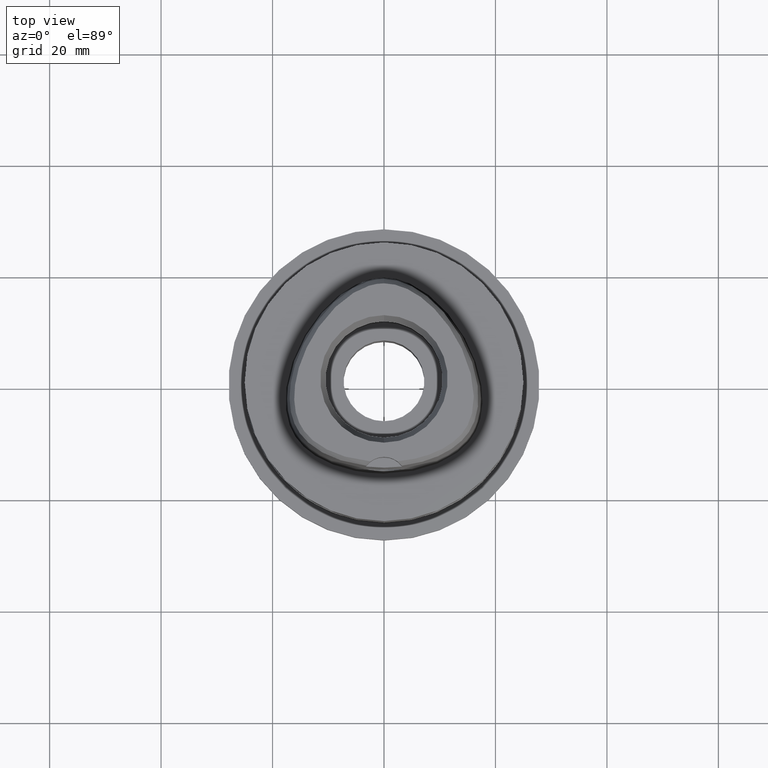
[diagram: clean part render]
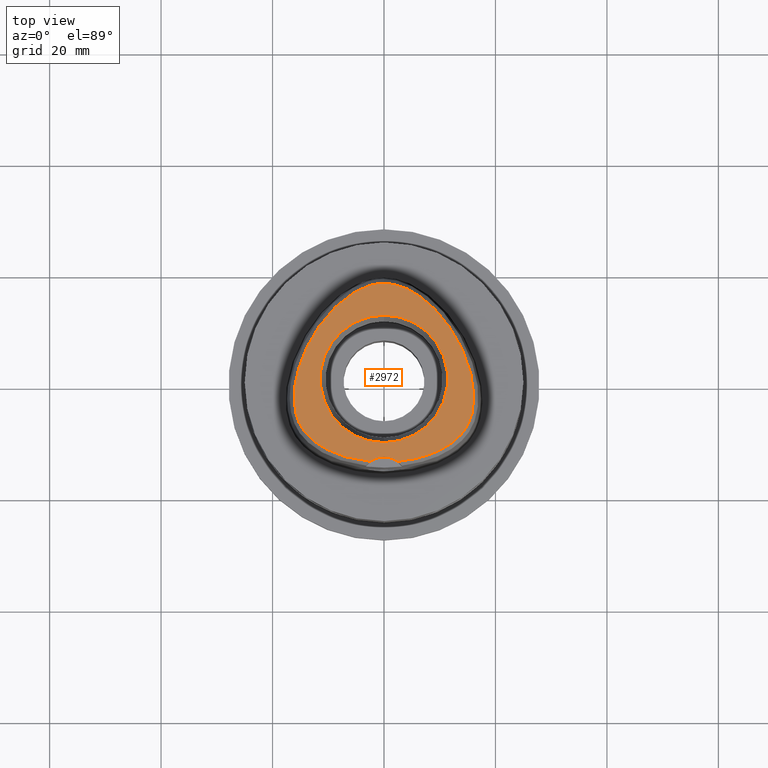
[diagram: same view with one face highlighted and labeled with its STEP entity id]
A machine part, top view. The second image highlights one B-rep face of the part: STEP entity #2972.
In plain terms, the highlighted planar face has unit normal (0, 0, 1).
Its self-contained STEP definition (entity closure, byte-faithful):
#17=CARTESIAN_POINT('',(0.E0,-1.8E1,3.E1));
#18=DIRECTION('',(0.E0,0.E0,1.E0));
#19=DIRECTION('',(6.016359810411E-1,7.987703964950E-1,0.E0));
#20=AXIS2_PLACEMENT_3D('',#17,#18,#19);
#26=CARTESIAN_POINT('',(-2.406542353495E0,-1.480491723099E1,3.E1));
#27=CARTESIAN_POINT('',(-3.109161179933E0,-1.474129718990E1,3.E1));
#28=CARTESIAN_POINT('',(-4.437358336849E0,-1.456504602185E1,3.E1));
#29=CARTESIAN_POINT('',(-6.238534705192E0,-1.417925905909E1,3.E1));
#30=CARTESIAN_POINT('',(-7.741710592277E0,-1.373579445654E1,3.E1));
#31=CARTESIAN_POINT('',(-9.069530232156E0,-1.323823702531E1,3.E1));
#32=CARTESIAN_POINT('',(-1.026829450351E1,-1.268199885637E1,3.E1));
#33=CARTESIAN_POINT('',(-1.135847473899E1,-1.206492026595E1,3.E1));
#34=CARTESIAN_POINT('',(-1.234489694393E1,-1.138381521960E1,3.E1));
#35=CARTESIAN_POINT('',(-1.318415154252E1,-1.067499953703E1,3.E1));
#36=CARTESIAN_POINT('',(-1.387487115613E1,-9.963714364918E0,3.E1));
#37=CARTESIAN_POINT('',(-1.444839980027E1,-9.238523917348E0,3.E1));
#38=CARTESIAN_POINT('',(-1.491175185993E1,-8.507975586286E0,3.E1));
#39=CARTESIAN_POINT('',(-1.529837219293E1,-7.728770952961E0,3.E1));
#40=CARTESIAN_POINT('',(-1.562623557968E1,-6.851471101386E0,3.E1));
#41=CARTESIAN_POINT('',(-1.588245783255E1,-5.874445677346E0,3.E1));
#42=CARTESIAN_POINT('',(-1.605870124537E1,-4.768913065026E0,3.E1));
#43=CARTESIAN_POINT('',(-1.613401620741E1,-3.560132425596E0,3.E1));
#44=CARTESIAN_POINT('',(-1.610264894494E1,-2.300917859104E0,3.E1));
#45=CARTESIAN_POINT('',(-1.596330142572E1,-9.691390692021E-1,3.E1));
#46=CARTESIAN_POINT('',(-1.570626344501E1,4.502061145955E-1,3.E1));
#47=CARTESIAN_POINT('',(-1.530187086851E1,2.023643866960E0,3.E1));
#48=CARTESIAN_POINT('',(-1.469398224817E1,3.809495974039E0,3.E1));
#49=CARTESIAN_POINT('',(-1.387437075310E1,5.701232250586E0,3.E1));
#50=CARTESIAN_POINT('',(-1.289000993558E1,7.554668622119E0,3.E1));
#51=CARTESIAN_POINT('',(-1.176274462392E1,9.327940698699E0,3.E1));
#52=CARTESIAN_POINT('',(-1.052497352959E1,1.096933844261E1,3.E1));
#53=CARTESIAN_POINT('',(-9.290885716814E0,1.235743058862E1,3.E1));
#54=CARTESIAN_POINT('',(-8.145190185510E0,1.346514176894E1,3.E1));
#55=CARTESIAN_POINT('',(-7.051483084153E0,1.438007482805E1,3.E1));
#56=CARTESIAN_POINT('',(-5.965503088340E0,1.515766033338E1,3.E1));
#57=CARTESIAN_POINT('',(-4.882193751627E0,1.580811963201E1,3.E1));
#58=CARTESIAN_POINT('',(-3.806226190347E0,1.633184881187E1,3.E1));
#59=CARTESIAN_POINT('',(-2.767552081238E0,1.671974647145E1,3.E1));
#60=CARTESIAN_POINT('',(-1.797105354015E0,1.697603683424E1,3.E1));
#61=CARTESIAN_POINT('',(-8.807517091895E-1,1.712180558568E1,3.E1));
#62=CARTESIAN_POINT('',(-2.894082794308E-1,1.715328888648E1,3.E1));
#63=CARTESIAN_POINT('',(-6.301949014356E-11,1.715328888648E1,3.E1));
#68=CARTESIAN_POINT('',(-6.301949014356E-11,1.715328888648E1,3.E1));
#69=CARTESIAN_POINT('',(2.889391681541E-1,1.715328888649E1,3.E1));
#70=CARTESIAN_POINT('',(8.796858845032E-1,1.712190815315E1,3.E1));
#71=CARTESIAN_POINT('',(1.796230900410E0,1.697626372075E1,3.E1));
#72=CARTESIAN_POINT('',(2.767773144627E0,1.671966247638E1,3.E1));
#73=CARTESIAN_POINT('',(3.803564291969E0,1.633280741820E1,3.E1));
#74=CARTESIAN_POINT('',(4.872971618429E0,1.581283711859E1,3.E1));
#75=CARTESIAN_POINT('',(5.952992982392E0,1.516612302977E1,3.E1));
#76=CARTESIAN_POINT('',(7.049319389249E0,1.438190795032E1,3.E1));
#77=CARTESIAN_POINT('',(8.137584033286E0,1.347168430105E1,3.E1));
#78=CARTESIAN_POINT('',(9.281427110069E0,1.236739400427E1,3.E1));
#79=CARTESIAN_POINT('',(1.051758667600E1,1.097828250121E1,3.E1));
#80=CARTESIAN_POINT('',(1.175206760808E1,9.343043981745E0,3.E1));
#81=CARTESIAN_POINT('',(1.287955641242E1,7.572701322593E0,3.E1));
#82=CARTESIAN_POINT('',(1.386724203900E1,5.716315526606E0,3.E1));
#83=CARTESIAN_POINT('',(1.469071737268E1,3.818697148236E0,3.E1));
#84=CARTESIAN_POINT('',(1.530253760380E1,2.022030475082E0,3.E1));
#85=CARTESIAN_POINT('',(1.570698439429E1,4.470499706763E-1,3.E1));
#86=CARTESIAN_POINT('',(1.596402284534E1,-9.742301580989E-1,3.E1));
#87=CARTESIAN_POINT('',(1.610291457074E1,-2.304270430734E0,3.E1));
#88=CARTESIAN_POINT('',(1.613392218872E1,-3.567382315263E0,3.E1));
#89=CARTESIAN_POINT('',(1.605818843614E1,-4.771701475705E0,3.E1));
#90=CARTESIAN_POINT('',(1.588267384290E1,-5.873758725011E0,3.E1));
#91=CARTESIAN_POINT('',(1.562509108237E1,-6.855244363065E0,3.E1));
#92=CARTESIAN_POINT('',(1.529799612413E1,-7.729414022952E0,3.E1));
#93=CARTESIAN_POINT('',(1.491081039260E1,-8.509944932358E0,3.E1));
#94=CARTESIAN_POINT('',(1.444558161705E1,-9.242364354441E0,3.E1));
#95=CARTESIAN_POINT('',(1.387428318931E1,-9.964355342065E0,3.E1));
#96=CARTESIAN_POINT('',(1.318147391573E1,-1.067750472887E1,3.E1));
#97=CARTESIAN_POINT('',(1.234479841375E1,-1.138373449953E1,3.E1));
#98=CARTESIAN_POINT('',(1.136031082193E1,-1.206367890903E1,3.E1));
#99=CARTESIAN_POINT('',(1.027304202054E1,-1.267954965893E1,3.E1));
#100=CARTESIAN_POINT('',(9.073160722336E0,-1.323673411219E1,3.E1));
#101=CARTESIAN_POINT('',(7.745615167476E0,-1.373458531509E1,3.E1));
#102=CARTESIAN_POINT('',(6.236841119683E0,-1.417976747111E1,3.E1));
#103=CARTESIAN_POINT('',(4.436852600013E0,-1.456507929174E1,3.E1));
#104=CARTESIAN_POINT('',(3.108810171301E0,-1.474132464137E1,3.E1));
#105=CARTESIAN_POINT('',(2.406543924165E0,-1.480491841402E1,3.E1));
#110=CARTESIAN_POINT('',(0.E0,1.570609519906E-14,3.E1));
#111=DIRECTION('',(0.E0,0.E0,1.E0));
#112=DIRECTION('',(0.E0,1.E0,0.E0));
#113=AXIS2_PLACEMENT_3D('',#110,#111,#112);
#118=CARTESIAN_POINT('',(0.E0,1.570609519906E-14,3.E1));
#119=DIRECTION('',(0.E0,0.E0,1.E0));
#120=DIRECTION('',(0.E0,-1.E0,0.E0));
#121=AXIS2_PLACEMENT_3D('',#118,#119,#120);
#2632=CARTESIAN_POINT('',(2.406543924164E0,-1.480491841402E1,3.E1));
#2633=CARTESIAN_POINT('',(-2.406542353497E0,-1.480491723099E1,3.E1));
#2634=VERTEX_POINT('',#2632);
#2635=VERTEX_POINT('',#2633);
#2636=VERTEX_POINT('',#63);
#2637=CARTESIAN_POINT('',(0.E0,1.143782217350E1,3.E1));
#2638=CARTESIAN_POINT('',(0.E0,-1.143782217350E1,3.E1));
#2639=VERTEX_POINT('',#2637);
#2640=VERTEX_POINT('',#2638);
#2953=CARTESIAN_POINT('',(0.E0,0.E0,3.E1));
#2954=DIRECTION('',(0.E0,0.E0,1.E0));
#2955=DIRECTION('',(0.E0,1.E0,0.E0));
#2956=AXIS2_PLACEMENT_3D('',#2953,#2954,#2955);
#2957=PLANE('',#2956);
#2959=ORIENTED_EDGE('',*,*,#2958,.T.);
#2961=ORIENTED_EDGE('',*,*,#2960,.T.);
#2963=ORIENTED_EDGE('',*,*,#2962,.T.);
#2964=EDGE_LOOP('',(#2959,#2961,#2963));
#2965=FACE_OUTER_BOUND('',#2964,.F.);
#2967=ORIENTED_EDGE('',*,*,#2966,.T.);
#2969=ORIENTED_EDGE('',*,*,#2968,.T.);
#2970=EDGE_LOOP('',(#2967,#2969));
#2971=FACE_BOUND('',#2970,.F.);
#21=CIRCLE('',#20,4.E0);
#64=B_SPLINE_CURVE_WITH_KNOTS('',3,(#26,#27,#28,#29,#30,#31,#32,#33,#34,#35,#36,
#37,#38,#39,#40,#41,#42,#43,#44,#45,#46,#47,#48,#49,#50,#51,#52,#53,#54,#55,#56,
#57,#58,#59,#60,#61,#62,#63),.UNSPECIFIED.,.F.,.F.,(4,1,1,1,1,1,1,1,1,1,1,1,1,1,
1,1,1,1,1,1,1,1,1,1,1,1,1,1,1,1,1,1,1,1,1,4),(0.E0,2.857142857143E-2,
5.714285714286E-2,8.571428571429E-2,1.142857142857E-1,1.428571428571E-1,
1.714285714286E-1,2.E-1,2.285714285714E-1,2.571428571429E-1,2.857142857143E-1,
3.142857142857E-1,3.428571428571E-1,3.714285714286E-1,4.E-1,4.285714285714E-1,
4.571428571429E-1,4.857142857143E-1,5.142857142857E-1,5.428571428571E-1,
5.714285714286E-1,6.E-1,6.285714285714E-1,6.571428571429E-1,6.857142857143E-1,
7.142857142857E-1,7.428571428571E-1,7.714285714286E-1,8.E-1,8.285714285714E-1,
8.571428571429E-1,8.857142857143E-1,9.142857142857E-1,9.428571428571E-1,
9.714285714286E-1,1.E0),.UNSPECIFIED.);
#106=B_SPLINE_CURVE_WITH_KNOTS('',3,(#68,#69,#70,#71,#72,#73,#74,#75,#76,#77,
#78,#79,#80,#81,#82,#83,#84,#85,#86,#87,#88,#89,#90,#91,#92,#93,#94,#95,#96,#97,
#98,#99,#100,#101,#102,#103,#104,#105),.UNSPECIFIED.,.F.,.F.,(4,1,1,1,1,1,1,1,1,
1,1,1,1,1,1,1,1,1,1,1,1,1,1,1,1,1,1,1,1,1,1,1,1,1,1,4),(0.E0,2.857142857143E-2,
5.714285714286E-2,8.571428571429E-2,1.142857142857E-1,1.428571428571E-1,
1.714285714286E-1,2.E-1,2.285714285714E-1,2.571428571429E-1,2.857142857143E-1,
3.142857142857E-1,3.428571428571E-1,3.714285714286E-1,4.E-1,4.285714285714E-1,
4.571428571429E-1,4.857142857143E-1,5.142857142857E-1,5.428571428571E-1,
5.714285714286E-1,6.E-1,6.285714285714E-1,6.571428571429E-1,6.857142857143E-1,
7.142857142857E-1,7.428571428571E-1,7.714285714286E-1,8.E-1,8.285714285714E-1,
8.571428571429E-1,8.857142857143E-1,9.142857142857E-1,9.428571428571E-1,
9.714285714286E-1,1.E0),.UNSPECIFIED.);
#114=CIRCLE('',#113,1.143782217350E1);
#122=CIRCLE('',#121,1.143782217350E1);
#2958=EDGE_CURVE('',#2634,#2635,#21,.T.);
#2960=EDGE_CURVE('',#2635,#2636,#64,.T.);
#2962=EDGE_CURVE('',#2636,#2634,#106,.T.);
#2966=EDGE_CURVE('',#2639,#2640,#114,.T.);
#2968=EDGE_CURVE('',#2640,#2639,#122,.T.);
#2972=ADVANCED_FACE('',(#2965,#2971),#2957,.T.);